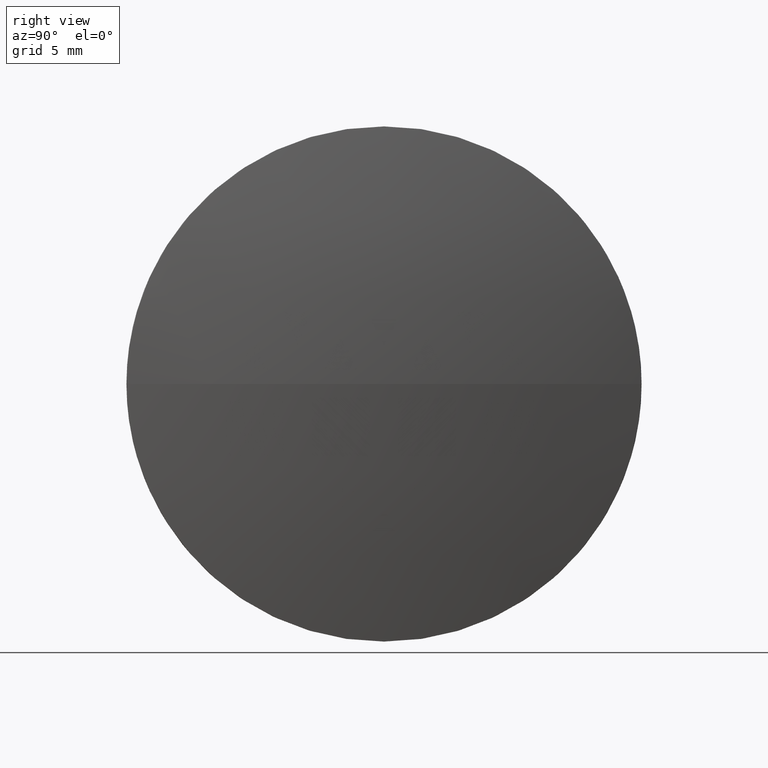
[diagram: clean part render]
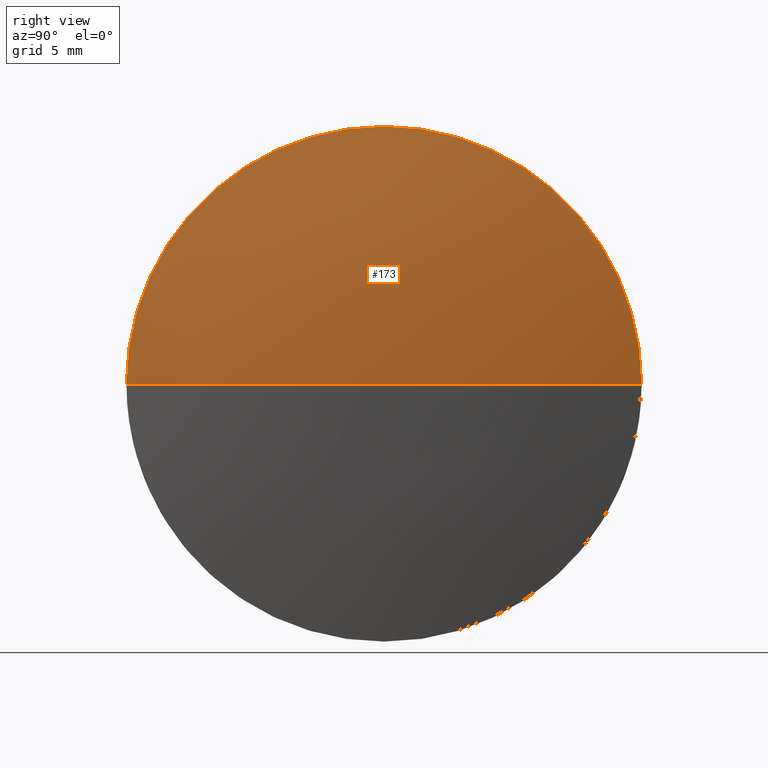
[diagram: same view with one face highlighted and labeled with its STEP entity id]
A machine part, right view. The second image highlights one B-rep face of the part: STEP entity #173.
In plain terms, the highlighted spherical surface has radius 68.3639 mm.
Its self-contained STEP definition (entity closure, byte-faithful):
#3 = CIRCLE ( 'NONE', #67, 68.36390756302523600 ) ;
#5 = ORIENTED_EDGE ( 'NONE', *, *, #27, .F. ) ;
#6 = DIRECTION ( 'NONE',  ( 0.0000000000000000000, -1.224646799147353200E-016, 1.000000000000000000 ) ) ;
#15 = DIRECTION ( 'NONE',  ( -1.000000000000000000, 0.0000000000000000000, 0.0000000000000000000 ) ) ;
#17 = DIRECTION ( 'NONE',  ( 0.0000000000000000000, 0.0000000000000000000, -1.000000000000000000 ) ) ;
#20 = EDGE_CURVE ( 'NONE', #103, #181, #115, .T. ) ;
#27 = EDGE_CURVE ( 'NONE', #150, #35, #111, .T. ) ;
#33 = DIRECTION ( 'NONE',  ( 0.0000000000000000000, -1.000000000000000000, -1.224646799147353000E-016 ) ) ;
#34 = DIRECTION ( 'NONE',  ( 0.0000000000000000000, -1.000000000000000000, 0.0000000000000000000 ) ) ;
#35 = VERTEX_POINT ( 'NONE', #179 ) ;
#52 = CARTESIAN_POINT ( 'NONE',  ( 617.9685008246222000, 216.4470888787178900, 1.555301434917140000E-015 ) ) ;
#54 = ORIENTED_EDGE ( 'NONE', *, *, #98, .F. ) ;
#56 = CIRCLE ( 'NONE', #65, 12.70000000000001700 ) ;
#63 = AXIS2_PLACEMENT_3D ( 'NONE', #104, #118, #136 ) ;
#65 = AXIS2_PLACEMENT_3D ( 'NONE', #134, #162, #70 ) ;
#67 = AXIS2_PLACEMENT_3D ( 'NONE', #93, #17, #15 ) ;
#70 = DIRECTION ( 'NONE',  ( 0.0000000000000000000, 0.0000000000000000000, 1.000000000000000000 ) ) ;
#76 = CARTESIAN_POINT ( 'NONE',  ( 550.7945932615970200, 203.7470888787179000, 0.0000000000000000000 ) ) ;
#82 = SPHERICAL_SURFACE ( 'NONE', #102, 68.36390756302522200 ) ;
#89 = EDGE_LOOP ( 'NONE', ( #123, #113, #54, #5 ) ) ;
#93 = CARTESIAN_POINT ( 'NONE',  ( 550.7945932615970200, 203.7470888787179000, 0.0000000000000000000 ) ) ;
#98 = EDGE_CURVE ( 'NONE', #35, #181, #56, .T. ) ;
#102 = AXIS2_PLACEMENT_3D ( 'NONE', #76, #142, #34 ) ;
#103 = VERTEX_POINT ( 'NONE', #164 ) ;
#104 = CARTESIAN_POINT ( 'NONE',  ( 617.9685008246222000, 203.7470888787178500, 0.0000000000000000000 ) ) ;
#111 = CIRCLE ( 'NONE', #63, 12.70000000000001700 ) ;
#113 = ORIENTED_EDGE ( 'NONE', *, *, #20, .T. ) ;
#115 = CIRCLE ( 'NONE', #154, 68.36390756302523600 ) ;
#118 = DIRECTION ( 'NONE',  ( -1.000000000000000000, -0.0000000000000000000, -0.0000000000000000000 ) ) ;
#123 = ORIENTED_EDGE ( 'NONE', *, *, #174, .F. ) ;
#134 = CARTESIAN_POINT ( 'NONE',  ( 617.9685008246222000, 203.7470888787178500, 0.0000000000000000000 ) ) ;
#136 = DIRECTION ( 'NONE',  ( 0.0000000000000000000, 0.0000000000000000000, 1.000000000000000000 ) ) ;
#137 = CARTESIAN_POINT ( 'NONE',  ( 550.7945932615970200, 203.7470888787179000, 0.0000000000000000000 ) ) ;
#142 = DIRECTION ( 'NONE',  ( 0.0000000000000000000, 0.0000000000000000000, 1.000000000000000000 ) ) ;
#150 = VERTEX_POINT ( 'NONE', #152 ) ;
#152 = CARTESIAN_POINT ( 'NONE',  ( 617.9685008246222000, 191.0470888787178600, 0.0000000000000000000 ) ) ;
#154 = AXIS2_PLACEMENT_3D ( 'NONE', #137, #6, #33 ) ;
#162 = DIRECTION ( 'NONE',  ( -1.000000000000000000, -0.0000000000000000000, -0.0000000000000000000 ) ) ;
#164 = CARTESIAN_POINT ( 'NONE',  ( 619.1585008246222500, 203.7470888787179000, 0.0000000000000000000 ) ) ;
#166 = FACE_OUTER_BOUND ( 'NONE', #89, .T. ) ;
#173 = ADVANCED_FACE ( 'NONE', ( #166 ), #82, .T. ) ;
#174 = EDGE_CURVE ( 'NONE', #103, #150, #3, .T. ) ;
#179 = CARTESIAN_POINT ( 'NONE',  ( 617.9685008246222000, 203.7470888787178500, 12.70000000000001700 ) ) ;
#181 = VERTEX_POINT ( 'NONE', #52 ) ;